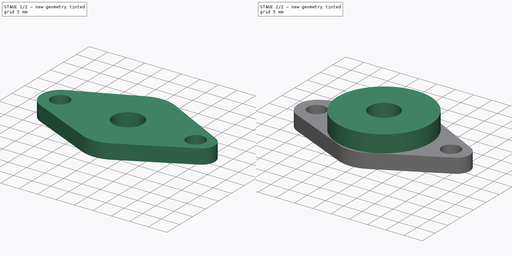
[diagram: build sequence overview — one tinted view per stage of 2, left to right]
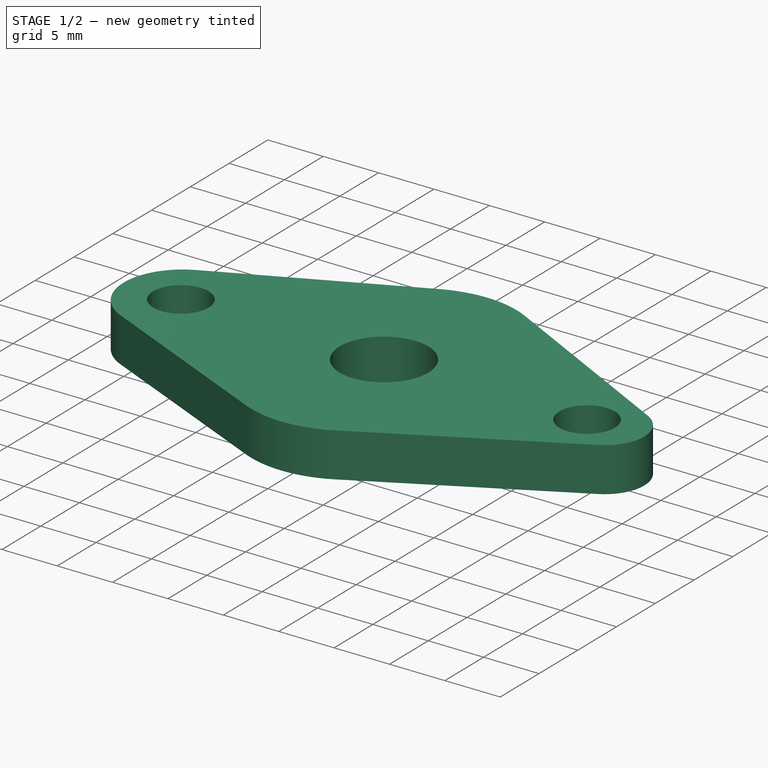
[diagram: stage 1 of 2 — iso view after this stage's code; geometry added in this stage tinted green]
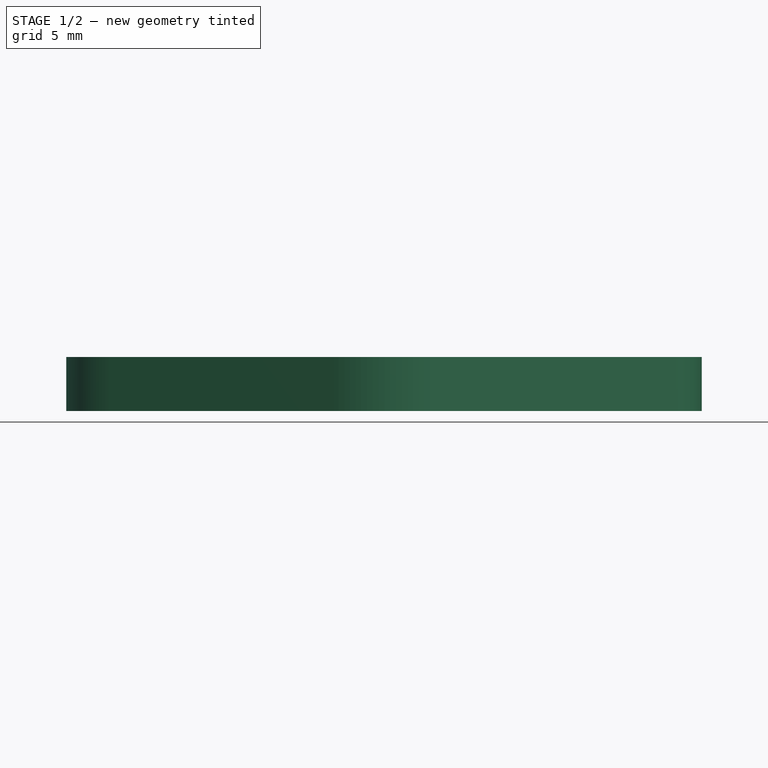
[diagram: stage 1 of 2 — front view after this stage's code; geometry added in this stage tinted green]
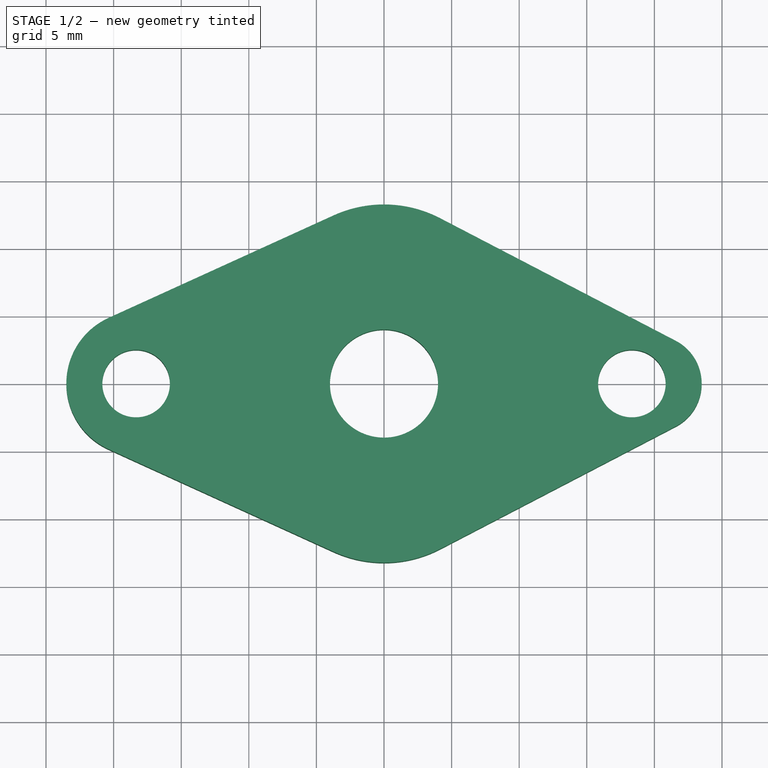
[diagram: stage 1 of 2 — top view after this stage's code; geometry added in this stage tinted green]
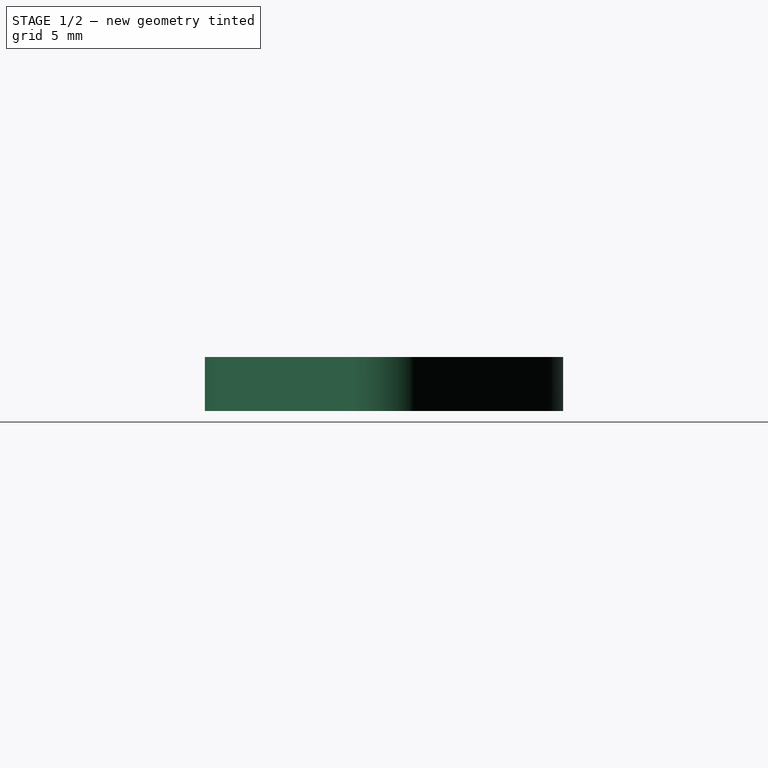
[diagram: stage 1 of 2 — right view after this stage's code; geometry added in this stage tinted green]
FCSTD DOCUMENT  (FreeCAD 0.16R6706 (Git))
Label: Mancal 8mm Horizontal
License: All rights reserved
LicenseURL: http://en.wikipedia.org/wiki/All_rights_reserved
objects: Drawing::FeatureViewPython×8, Drawing::FeatureViewPart×3, Sketcher::SketchObject×2, PartDesign::Pad×2, Drawing::FeaturePage×1
note: 6 computed .brp shape members not serialized (recipe doc carries the construction recipe); baked Part::Feature solids carry a one-line shape summary decoded from their .brp

FEATURE [Sketcher::SketchObject] Sketch
  sketch-geometry (13):
    g0: LineSegment StartX=-20.3762 StartY=-4.85612 StartZ=0 EndX=-3.73161 EndY=-12.4399 EndZ=0
    g1: LineSegment StartX=4.15512 StartY=-12.2334 StartZ=0 EndX=21.5795 EndY=-3.16457 EndZ=0
    g2: LineSegment StartX=21.5795 StartY=3.16457 StartZ=0 EndX=4.15512 EndY=12.2334 EndZ=0
    g3: LineSegment StartX=-3.73161 StartY=12.4399 StartZ=0 EndX=-20.3762 EndY=4.85612 EndZ=0
    g4: ArcOfCircle CenterX=-18.1636 CenterY=0 CenterZ=0 NormalX=0 NormalY=0 NormalZ=1 Radius=5.33644 StartAngle=1.99832 EndAngle=4.28486
    g5: ArcOfCircle CenterX=0 CenterY=4.25 CenterZ=0 NormalX=0 NormalY=0 NormalZ=1 Radius=9 StartAngle=1.09091 EndAngle=1.99832
    g6: ArcOfCircle CenterX=19.9325 CenterY=0 CenterZ=0 NormalX=0 NormalY=0 NormalZ=1 Radius=3.56754 StartAngle=5.19228 EndAngle=7.37409
    g7: ArcOfCircle CenterX=0 CenterY=-4.25 CenterZ=0 NormalX=0 NormalY=0 NormalZ=1 Radius=9 StartAngle=4.28486 EndAngle=5.19228
    g8: Circle CenterX=0 CenterY=0 CenterZ=0 NormalX=0 NormalY=0 NormalZ=1 Radius=4
    g9: Circle CenterX=-18.3364 CenterY=0 CenterZ=0 NormalX=0 NormalY=0 NormalZ=1 Radius=2.5
    g10: Circle CenterX=18.3364 CenterY=0 CenterZ=0 NormalX=0 NormalY=0 NormalZ=1 Radius=2.5
    g11: LineSegment [constr] StartX=-23.5 StartY=0 StartZ=0 EndX=23.5 EndY=0 EndZ=0
    g12: LineSegment [constr] StartX=0 StartY=13.25 StartZ=0 EndX=0 EndY=-13.25 EndZ=0
  constraints (30):
    c: Tangent(g0,g4) = -1.5708
    c: Tangent(g3,g4) = -1.5708
    c: Tangent(g2,g5) = -1.5708
    c: Tangent(g3,g5) = -1.5708
    c: Tangent(g1,g6) = -1.5708
    c: Tangent(g2,g6) = -1.5708
    c: Tangent(g0,g7) = -1.5708
    c: Tangent(g1,g7) = -1.5708
    c: Coincident(g8,g-1)
    c: Radius(g8) = 4
    c: PointOnObject(g10,g-1)
    c: PointOnObject(g9,g-1)
    c: Radius(g9) = 2.5
    c: Equal(g9,g10)
    c: Symmetric(g9,g10,g-1)
    c: PointOnObject(g6,g-1)
    c: PointOnObject(g4,g-1)
    c: Symmetric(g11,g11,g-1)
    c: Horizontal(g11)
    c: DistanceX(g11,g11) = 47
    c: PointOnObject(g11,g6)
    c: PointOnObject(g11,g4)
    c: DistanceX(g4,g10) = 36.5
    c: Vertical(g12)
    c: Symmetric(g12,g12,g-1)
    c: DistanceY(g12,g12) = 26.5
    c: PointOnObject(g12,g5)
    c: PointOnObject(g12,g7)
    c: PointOnObject(g7,g12)
    c: PointOnObject(g5,g12)
FEATURE [PartDesign::Pad] Pad  label="Mancal 8mm Horizontal"
  Length = 4
  Length2 = 100
  Sketch = -> Sketch
  Type = 0
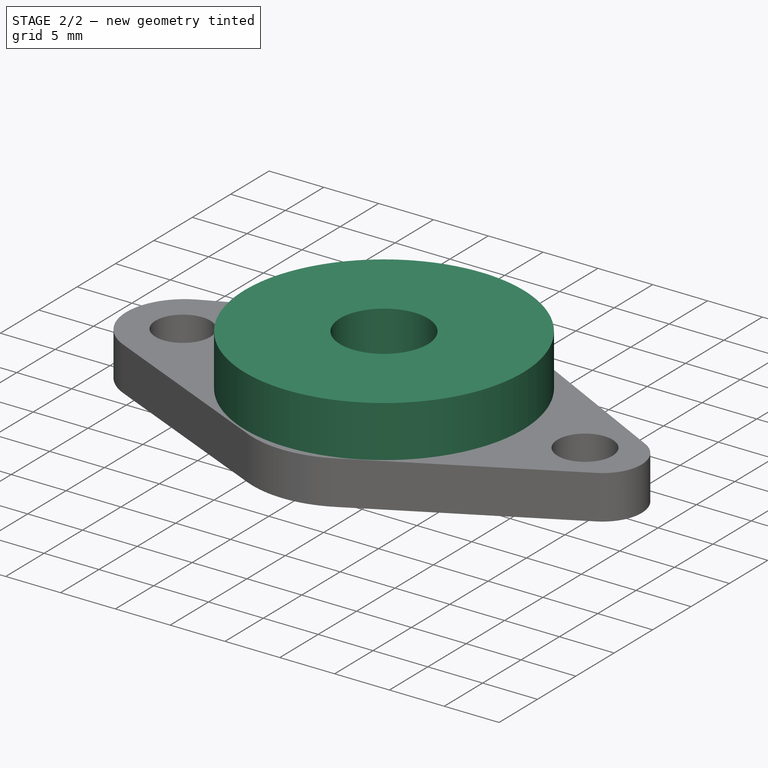
[diagram: stage 2 of 2 — iso view after this stage's code; geometry added in this stage tinted green]
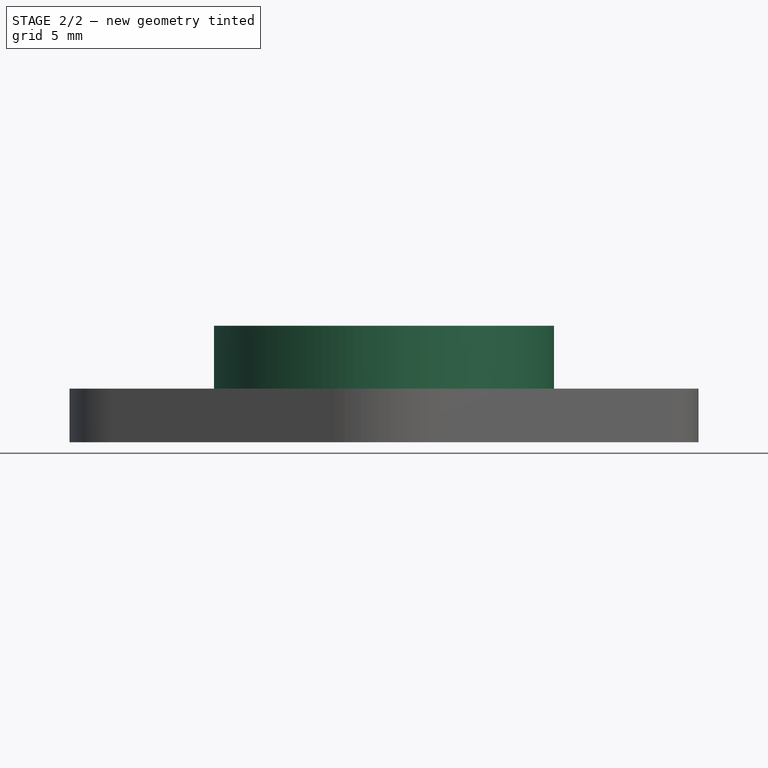
[diagram: stage 2 of 2 — front view after this stage's code; geometry added in this stage tinted green]
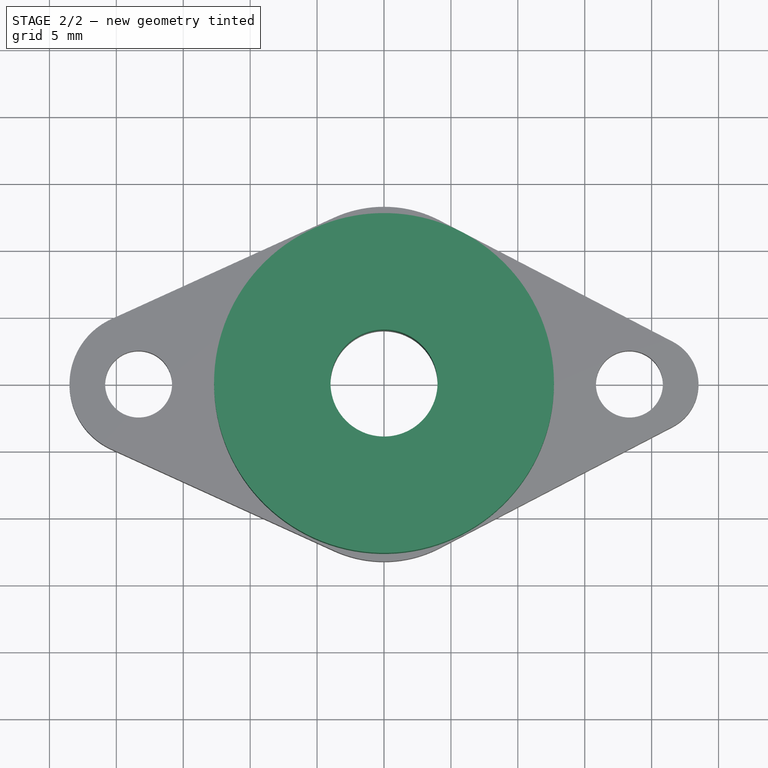
[diagram: stage 2 of 2 — top view after this stage's code; geometry added in this stage tinted green]
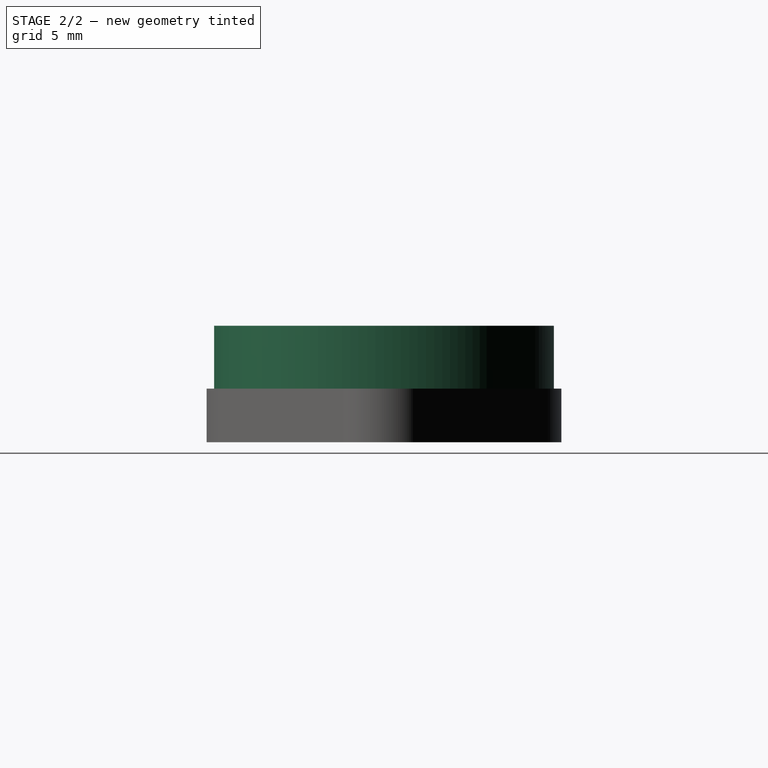
[diagram: stage 2 of 2 — right view after this stage's code; geometry added in this stage tinted green]
FEATURE [Sketcher::SketchObject] Sketch001
  Placement = pos=(0,0,4) rot=(0,0,1;0rad)
  Support = -> Pad [Face13]
  sketch-geometry (2):
    g0: Circle CenterX=0 CenterY=0 CenterZ=0 NormalX=0 NormalY=0 NormalZ=1 Radius=4
    g1: Circle CenterX=0 CenterY=0 CenterZ=0 NormalX=0 NormalY=0 NormalZ=1 Radius=12.7
  constraints (4):
    c: Coincident(g-1,g0)
    c: Radius(g0) = 4
    c: Coincident(g-1,g1)
    c: Radius(g1) = 12.7
FEATURE [PartDesign::Pad] Pad001
  Length = 4.7
  Length2 = 100
  Sketch = -> Sketch001
  Type = 0
FEATURE [Drawing::FeatureViewPart] Ortho  label="Ortho_0_0"
  Direction = (1,0,0)
  HiddenWidth = 0.15
  LineWidth = 0.35
  Rotation = -90
  Scale = 2
  ShowHiddenLines = false
  ShowSmoothLines = false
  Source = -> Pad001
  Tolerance = 0.05
  ViewResult = <blob: 2425 chars omitted>
  Visible = true
  X = 47.5266
  Y = 235.105
FEATURE [Drawing::FeatureViewPart] Ortho001  label="Ortho_0_1"
  Direction = (0,0,1)
  HiddenWidth = 0.15
  LineWidth = 0.35
  Rotation = 90
  Scale = 2
  ShowHiddenLines = false
  ShowSmoothLines = false
  Source = -> Pad001
  Tolerance = 0.05
  ViewResult = <g id="Ortho_0_1"\n   transform="rotate(90,47.5266,108.809) translate(47.5266,108.809) scale(2,2)"\n  >\n<g   stroke="rgb(0, 0, 0)"\n   stroke-width="0.175"\n   stroke-linecap="butt"\n   stroke-linejoin="miter"\n   fill="none"\n   transform="scale(1,-1)"\n  >\n<path id= "1" d=" M -20.3762 -4.85612 L -3.73161 -12.4399 " />\n<path d="M-20.3762 4.85612 A5.33644 5.33644 0 0 1 -20.3762 -4.85612" /><path d="M-3.73161 -12.4399 A9 9 0 0 1 4.15512 -12.2334" /><path id= "4" d=" M -3.73161 12.4399 L -20.3762 4.85612 " />\n<path id= "5" d=" M 4.15512 -12.2334 L 21.5795 -3.16457 " />\n<path d="M4.15512 12.2334 A9 9 0 0 1 -3.73161 12.4399" /><path d="M21.5795 -3.16457 A3.56754 3.56754 0 0 1 21.5795 3.16457" /><path id= "8" d=" M 21.5795 3.16457 L 4.15512 12.2334 " />\n<circle cx ="18.3364" cy ="0" r ="2.5" /><circle cx ="-18.3364" cy ="0" r ="2.5" /><circle cx ="0" cy ="0" r ="12.7" /><circle cx ="0" cy ="0" r ="4" /></g>\n</g>
  Visible = true
  X = 47.5266
  Y = 108.809
FEATURE [Drawing::FeatureViewPart] Ortho002  label="Ortho_1_0"
  Direction = (0,1,0)
  HiddenWidth = 0.15
  LineWidth = 0.35
  Rotation = -90
  Scale = 2
  ShowHiddenLines = false
  ShowSmoothLines = false
  Source = -> Pad001
  Tolerance = 0.05
  ViewResult = <blob: 2183 chars omitted>
  Visible = true
  X = 142.053
  Y = 235.105
FEATURE [Drawing::FeatureViewPython] dim001  # drawing view (typed FeaturePython)
  Rotation = 0
  ViewResult = <g> \n  <line x1="22.126600" y1="110.809000" x2="22.126600" y2="178.517086" style="stroke:rgb(0,0,255);stroke-width:0.50" />\n<line x1="72.926600" y1="110.809000" x2="72.926600" y2="178.517086" style="stroke:rgb(0,0,255);stroke-width:0.50" />\n<line x1="22.126600" y1="177.517086" x2="72.926600" y2="177.517086" style="stroke:rgb(0,0,255);stroke-width:0.50" /> \n  <polygon points="72.926600,177.517086 69.926600,176.517086 68.926600,177.517086 69.926600,178.517086" style="fill:rgb(0,0,255);stroke:rgb(0,0,255);stroke-width:0" /><polygon points="22.126600,177.517086 25.126600,178.517086 26.126600,177.517086 25.126600,176.517086" style="fill:rgb(0,0,255);stroke:rgb(0,0,255);stroke-width:0" /> \n  <text x="47.526600" y="175.517086" font-family="inherit" font-size="3.6" fill="rgb(0,0,255)" text-anchor="middle" transform="rotate(0.000000 47.526600,175.517086)" >25.4</text> </g>
  Visible = true
  X = 0
  Y = 0
  arrowL1 = 3
  arrowL2 = 1
  arrowW = 2
  arrow_scheme = 0
  autoPlaceOffset = 2
  autoPlaceText = true
  click1_x = 68.4074
  click1_y = 177.517
  click2_x = 68.4074
  click2_y = 177.517
  comma_decimal_place = false
  dimension_line_overshoot = 1
  gap_datum_points = 2
  halfDimension_linear = false
  lineColor = rgb(0,0,255)
  strokeWidth = 0.5
  textFormat_linear = %(value)3.3f
  textRenderer_color = rgb(0,0,255)
  textRenderer_family = inherit
  textRenderer_size = 3.6
  unit_custom_scale = 1
  unit_scheme = 0
FEATURE [Drawing::FeatureViewPython] dim002  # drawing view (typed FeaturePython)
  Rotation = 0
  ViewResult = <g> \n  <line x1="49.526600" y1="145.481800" x2="96.086223" y2="145.481800" style="stroke:rgb(0,0,255);stroke-width:0.50" />\n<line x1="49.526600" y1="72.136200" x2="96.086223" y2="72.136200" style="stroke:rgb(0,0,255);stroke-width:0.50" />\n<line x1="95.086223" y1="145.481800" x2="95.086223" y2="72.136200" style="stroke:rgb(0,0,255);stroke-width:0.50" /> \n  <polygon points="95.086223,72.136200 94.086223,75.136200 95.086223,76.136200 96.086223,75.136200" style="fill:rgb(0,0,255);stroke:rgb(0,0,255);stroke-width:0" /><polygon points="95.086223,145.481800 96.086223,142.481800 95.086223,141.481800 94.086223,142.481800" style="fill:rgb(0,0,255);stroke:rgb(0,0,255);stroke-width:0" /> \n  <text x="93.086223" y="108.809000" font-family="inherit" font-size="3.6" fill="rgb(0,0,255)" text-anchor="middle" transform="rotate(-90.000000 93.086223,108.809000)" >36,5</text> </g>
  Visible = true
  X = 0
  Y = 0
  arrowL1 = 3
  arrowL2 = 1
  arrowW = 2
  arrow_scheme = 0
  autoPlaceOffset = 2
  autoPlaceText = true
  click1_x = 95.0862
  click1_y = 75.9322
  click2_x = 95.0862
  click2_y = 75.9322
  comma_decimal_place = false
  dimension_line_overshoot = 1
  gap_datum_points = 2
  halfDimension_linear = false
  lineColor = rgb(0,0,255)
  strokeWidth = 0.5
  textFormat_linear = 36,5
  textRenderer_color = rgb(0,0,255)
  textRenderer_family = inherit
  textRenderer_size = 3.6
  unit_custom_scale = 1
  unit_scheme = 0
FEATURE [Drawing::FeatureViewPython] dim003  # drawing view (typed FeaturePython)
  Rotation = 0
  ViewResult = <g> \n  <line x1="49.526600" y1="72.136200" x2="85.483083" y2="72.136200" style="stroke:rgb(0,0,255);stroke-width:0.50" />\n<line x1="49.526600" y1="108.809000" x2="85.483083" y2="108.809000" style="stroke:rgb(0,0,255);stroke-width:0.50" />\n<line x1="84.483083" y1="72.136200" x2="84.483083" y2="108.809000" style="stroke:rgb(0,0,255);stroke-width:0.50" /> \n  <polygon points="84.483083,108.809000 85.483083,105.809000 84.483083,104.809000 83.483083,105.809000" style="fill:rgb(0,0,255);stroke:rgb(0,0,255);stroke-width:0" /><polygon points="84.483083,72.136200 83.483083,75.136200 84.483083,76.136200 85.483083,75.136200" style="fill:rgb(0,0,255);stroke:rgb(0,0,255);stroke-width:0" /> \n  <text x="82.483083" y="90.472600" font-family="inherit" font-size="3.6" fill="rgb(0,0,255)" text-anchor="middle" transform="rotate(-90.000000 82.483083,90.472600)" >18.336</text> </g>
  Visible = true
  X = 0
  Y = 0
  arrowL1 = 3
  arrowL2 = 1
  arrowW = 2
  arrow_scheme = 0
  autoPlaceOffset = 2
  autoPlaceText = true
  click1_x = 84.4831
  click1_y = 107.058
  click2_x = 84.4831
  click2_y = 107.058
  comma_decimal_place = false
  dimension_line_overshoot = 1
  gap_datum_points = 2
  halfDimension_linear = false
  lineColor = rgb(0,0,255)
  strokeWidth = 0.5
  textFormat_linear = %(value)3.3f
  textRenderer_color = rgb(0,0,255)
  textRenderer_family = inherit
  textRenderer_size = 3.6
  unit_custom_scale = 1
  unit_scheme = 0
FEATURE [Drawing::FeatureViewPython] dim004  # drawing view (typed FeaturePython)
  Rotation = 0
  ViewResult = <g> \n  <line x1="94.088400" y1="227.105000" x2="84.851230" y2="227.105000" style="stroke:rgb(0,0,255);stroke-width:0.50" />\n<line x1="93.587800" y1="235.105000" x2="84.851230" y2="235.105000" style="stroke:rgb(0,0,255);stroke-width:0.50" />\n<line x1="85.851230" y1="227.105000" x2="85.851230" y2="235.105000" style="stroke:rgb(0,0,255);stroke-width:0.50" /> \n  <polygon points="85.851230,235.105000 84.851230,238.105000 85.851230,239.105000 86.851230,238.105000" style="fill:rgb(0,0,255);stroke:rgb(0,0,255);stroke-width:0" /><polygon points="85.851230,227.105000 86.851230,224.105000 85.851230,223.105000 84.851230,224.105000" style="fill:rgb(0,0,255);stroke:rgb(0,0,255);stroke-width:0" /> \n  <text x="83.851230" y="231.105000" font-family="inherit" font-size="3.6" fill="rgb(0,0,255)" text-anchor="middle" transform="rotate(-90.000000 83.851230,231.105000)" >4</text> </g>
  Visible = true
  X = 0
  Y = 0
  arrowL1 = 3
  arrowL2 = 1
  arrowW = 2
  arrow_scheme = 0
  autoPlaceOffset = 2
  autoPlaceText = true
  click1_x = 85.8512
  click1_y = 232.585
  click2_x = 85.8512
  click2_y = 232.585
  comma_decimal_place = false
  dimension_line_overshoot = 1
  gap_datum_points = 2
  halfDimension_linear = false
  lineColor = rgb(0,0,255)
  strokeWidth = 0.5
  textFormat_linear = %(value)3.3f
  textRenderer_color = rgb(0,0,255)
  textRenderer_family = inherit
  textRenderer_size = 3.6
  unit_custom_scale = 1
  unit_scheme = 0
FEATURE [Drawing::FeatureViewPython] dim005  # drawing view (typed FeaturePython)
  Rotation = 0
  ViewResult = <g> \n  <line x1="191.017400" y1="235.105000" x2="204.511880" y2="235.105000" style="stroke:rgb(0,0,255);stroke-width:0.50" />\n<line x1="169.453000" y1="217.705000" x2="204.511880" y2="217.705000" style="stroke:rgb(0,0,255);stroke-width:0.50" />\n<line x1="203.511880" y1="235.105000" x2="203.511880" y2="217.705000" style="stroke:rgb(0,0,255);stroke-width:0.50" /> \n  <polygon points="203.511880,217.705000 202.511880,220.705000 203.511880,221.705000 204.511880,220.705000" style="fill:rgb(0,0,255);stroke:rgb(0,0,255);stroke-width:0" /><polygon points="203.511880,235.105000 204.511880,232.105000 203.511880,231.105000 202.511880,232.105000" style="fill:rgb(0,0,255);stroke:rgb(0,0,255);stroke-width:0" /> \n  <text x="201.511880" y="226.405000" font-family="inherit" font-size="3.6" fill="rgb(0,0,255)" text-anchor="middle" transform="rotate(-90.000000 201.511880,226.405000)" >8.7</text> </g>
  Visible = true
  X = 0
  Y = 0
  arrowL1 = 3
  arrowL2 = 1
  arrowW = 2
  arrow_scheme = 0
  autoPlaceOffset = 2
  autoPlaceText = true
  click1_x = 203.512
  click1_y = 227.796
  click2_x = 203.512
  click2_y = 227.796
  comma_decimal_place = false
  dimension_line_overshoot = 1
  gap_datum_points = 2
  halfDimension_linear = false
  lineColor = rgb(0,0,255)
  strokeWidth = 0.5
  textFormat_linear = %(value)3.3f
  textRenderer_color = rgb(0,0,255)
  textRenderer_family = inherit
  textRenderer_size = 3.6
  unit_custom_scale = 1
  unit_scheme = 0
FEATURE [Drawing::FeatureViewPython] rad001  # drawing view (typed FeaturePython)
  Rotation = 0
  ViewResult = <g>  <circle cx ="47.526600" cy ="72.136200" r="0.250000" stroke="none" fill="rgb(0,0,255)" /> \n<line x1="69.091428" y1="55.751994" x2="47.526600" y2="72.136200" style="stroke:rgb(0,0,255);stroke-width:0.50" />\n<polygon points="43.545339,69.111376 45.329131,71.722523 46.730348,71.531235 46.539060,70.130018" style="fill:rgb(0,0,255);stroke:rgb(0,0,255);stroke-width:0" />\n<line x1="69.091428" y1="55.751994" x2="86.877341" y2="55.751994" style="stroke:rgb(0,0,255);stroke-width:0.50" />\n<text x="77.984384" y="53.751994" font-family="inherit" font-size="3.6" fill="rgb(0,0,255)" text-anchor="middle" transform="rotate(0.000000 77.984384,53.751994)" >R2.5</text> </g>
  Visible = true
  X = 0
  Y = 0
  arrowL1 = 3
  arrowL2 = 1
  arrowW = 2
  arrow_scheme = 0
  autoPlaceOffset = 2
  autoPlaceText = true
  centerPointDia = 0.5
  click1_x = 69.0914
  click1_y = 55.752
  click2_x = 86.8773
  click2_y = 55.41
  click3_x = 86.8773
  click3_y = 55.41
  comma_decimal_place = false
  lineColor = rgb(0,0,255)
  strokeWidth = 0.5
  textFormat_radial = R%(value)3.3f
  textRenderer_color = rgb(0,0,255)
  textRenderer_family = inherit
  textRenderer_size = 3.6
  unit_custom_scale = 1
  unit_scheme = 0
FEATURE [Drawing::FeatureViewPython] rad002  # drawing view (typed FeaturePython)
  Rotation = 0
  ViewResult = <g>  <circle cx ="47.526600" cy ="108.809000" r="0.250000" stroke="none" fill="rgb(0,0,255)" /> \n<line x1="110.477878" y1="128.947864" x2="47.526600" y2="108.809000" style="stroke:rgb(0,0,255);stroke-width:0.50" />\n<polygon points="55.146188,111.246597 52.593542,109.380050 51.336394,110.027798 51.984143,111.284947" style="fill:rgb(0,0,255);stroke:rgb(0,0,255);stroke-width:0" />\n<line x1="110.477878" y1="128.947864" x2="126.895643" y2="128.947864" style="stroke:rgb(0,0,255);stroke-width:0.50" />\n<text x="118.686761" y="126.947864" font-family="inherit" font-size="3.6" fill="rgb(0,0,255)" text-anchor="middle" transform="rotate(0.000000 118.686761,126.947864)" >R4</text> </g>
  Visible = true
  X = 0
  Y = 0
  arrowL1 = 3
  arrowL2 = 1
  arrowW = 2
  arrow_scheme = 0
  autoPlaceOffset = 2
  autoPlaceText = true
  centerPointDia = 0.5
  click1_x = 110.478
  click1_y = 128.948
  click2_x = 126.896
  click2_y = 128.264
  click3_x = 126.896
  click3_y = 128.264
  comma_decimal_place = false
  lineColor = rgb(0,0,255)
  strokeWidth = 0.5
  textFormat_radial = R%(value)3.3f
  textRenderer_color = rgb(0,0,255)
  textRenderer_family = inherit
  textRenderer_size = 3.6
  unit_custom_scale = 1
  unit_scheme = 0
FEATURE [Drawing::FeatureViewPython] rad003  # drawing view (typed FeaturePython)
  Rotation = 0
  ViewResult = <g>  <circle cx ="47.526600" cy ="108.809000" r="0.250000" stroke="none" fill="rgb(0,0,255)" /> \n<line x1="95.428260" y1="174.096718" x2="47.526600" y2="108.809000" style="stroke:rgb(0,0,255);stroke-width:0.50" />\n<polygon points="62.552132,129.288096 61.583727,126.277749 60.185907,126.063042 59.971199,127.460862" style="fill:rgb(0,0,255);stroke:rgb(0,0,255);stroke-width:0" />\n<line x1="95.428260" y1="174.096718" x2="124.501386" y2="174.096718" style="stroke:rgb(0,0,255);stroke-width:0.50" />\n<text x="109.964823" y="172.096718" font-family="inherit" font-size="3.6" fill="rgb(0,0,255)" text-anchor="middle" transform="rotate(0.000000 109.964823,172.096718)" >R12.7</text> </g>
  Visible = true
  X = 0
  Y = 0
  arrowL1 = 3
  arrowL2 = 1
  arrowW = 2
  arrow_scheme = 0
  autoPlaceOffset = 2
  autoPlaceText = true
  centerPointDia = 0.5
  click1_x = 95.4283
  click1_y = 174.097
  click2_x = 124.501
  click2_y = 175.465
  click3_x = 124.501
  click3_y = 175.465
  comma_decimal_place = false
  lineColor = rgb(0,0,255)
  strokeWidth = 0.5
  textFormat_radial = R%(value)3.3f
  textRenderer_color = rgb(0,0,255)
  textRenderer_family = inherit
  textRenderer_size = 3.6
  unit_custom_scale = 1
  unit_scheme = 0
FEATURE [Drawing::FeaturePage] Page001  label="A4"
  Group = -> [Ortho,Ortho001,Ortho002,dim001,dim002,dim003,dim004,dim005,rad001,rad002,rad003]
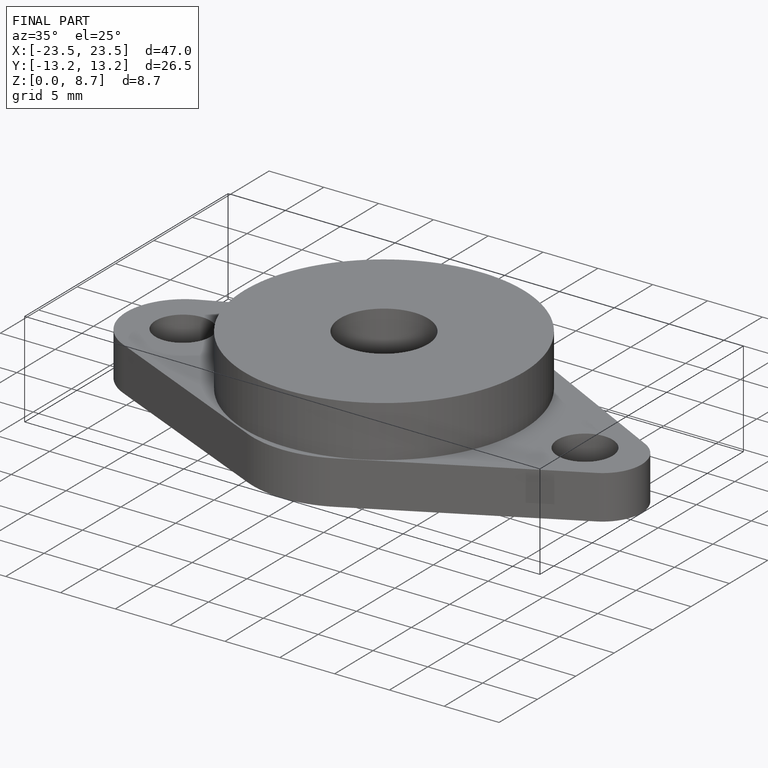
[diagram: finished part — iso view with bounding-box wireframe]
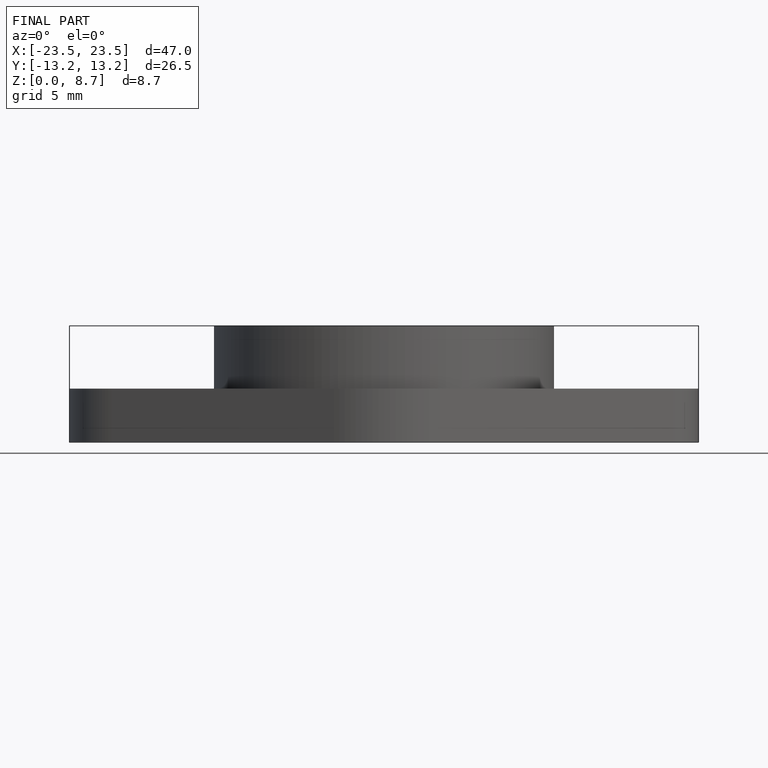
[diagram: finished part — front view with bounding-box wireframe]
